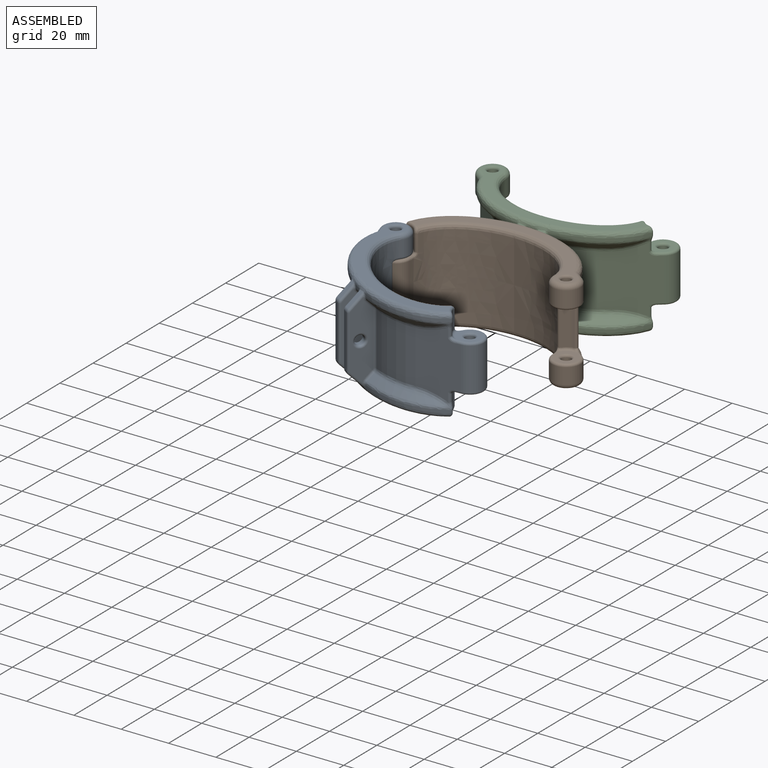
[diagram: assembled view]
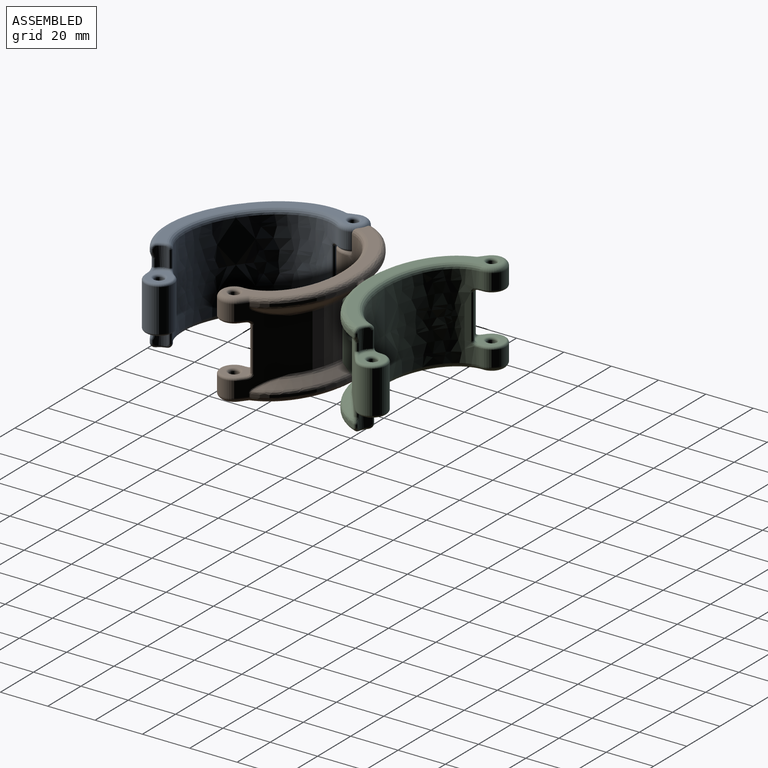
[diagram: assembled view, second angle]
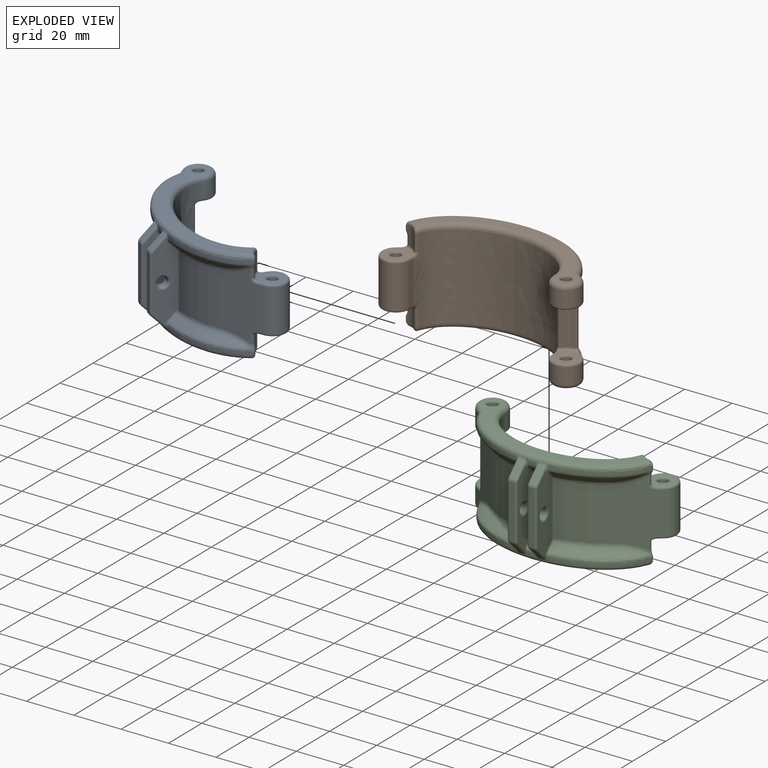
[diagram: exploded view]
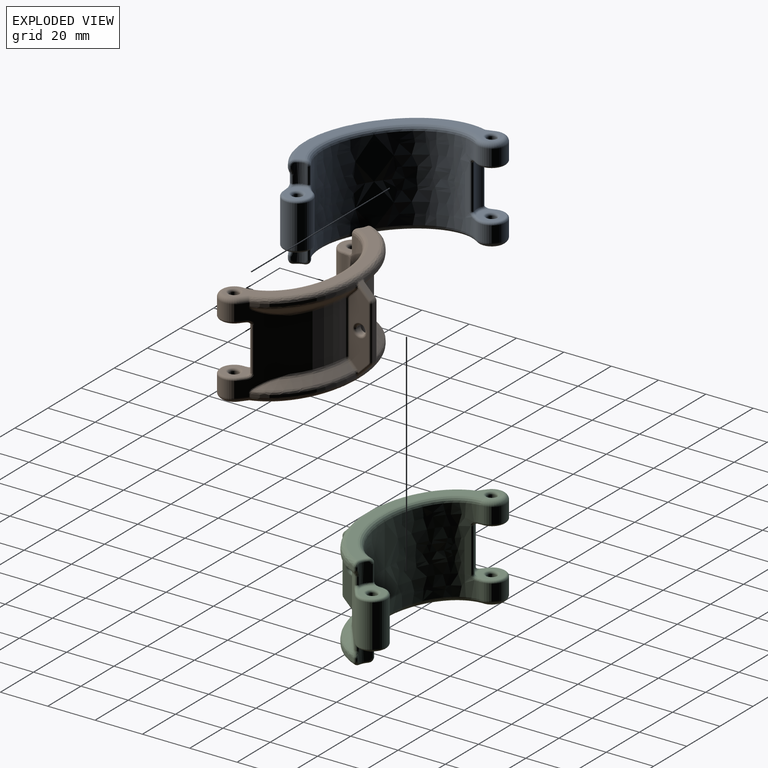
[diagram: exploded view, second angle]
ASSEMBLY  parts=3 mates=3
PART A: 245 faces, bbox 89x46.3x44.1 mm
  f0: bspline ~16.75x3.36mm, area 1.8mm2, adj f1,f4,f10,f193
  f1: bspline ~17.76x5.63mm, area 4.7mm2, adj f0,f2,f11,f196
  f2: bspline ~17.97x3.57mm, area 1.9mm2, adj f1,f3,f12,f197,f198
  f3: bspline ~17.97x3.02mm, area 2mm2, adj f2,f13,f35,f194
  f4: bspline ~16.54x11.17mm, area 13.1mm2, adj f0,f9,f14,f190
  f5: bspline ~16.75x3.36mm, area 1.8mm2, adj f6,f9,f15,f186
  f6: bspline ~17.76x5.63mm, area 4.7mm2, adj f5,f7,f16,f184
  f7: bspline ~17.97x3.57mm, area 1.9mm2, adj f6,f8,f17,f180,f183
  f8: bspline ~17.97x3.02mm, area 2mm2, adj f7,f18,f28,f182
  f9: bspline ~16.54x11.17mm, area 13.1mm2, adj f4,f5,f19,f188
  f10: bspline ~16.75x3.36mm, area 1.8mm2, adj f0,f11,f14,f229
  f11: bspline ~17.76x5.63mm, area 4.7mm2, adj f1,f10,f12,f231
  f12: bspline ~17.97x3.57mm, area 1.9mm2, adj f2,f11,f13,f233,f235
  f13: bspline ~17.97x3.02mm, area 2mm2, adj f3,f12,f54,f237
  f14: bspline ~16.54x11.17mm, area 13.1mm2, adj f4,f10,f19,f227
  f15: bspline ~16.75x3.36mm, area 1.8mm2, adj f5,f16,f19,f221
  f16: bspline ~17.76x5.63mm, area 4.7mm2, adj f6,f15,f17,f220
  f17: bspline ~17.97x3.57mm, area 1.9mm2, adj f7,f16,f18,f222,f224
  f18: bspline ~17.97x3.02mm, area 2mm2, adj f8,f17,f69,f225
  f19: bspline ~16.54x11.17mm, area 13.1mm2, adj f9,f14,f15,f223
  f20: bspline ~30x20mm, area 666.5mm2, adj f24,f38,f56,f58,f101,f109,f110
  f21: plane 36x14.3mm, normal (0.62,0.78,0), area 373.9mm2, adj f22,f55,f56,f60,f61,f62,f63,f70
  f22: cylinder r=6mm len=12mm, axis (0,0,-1), area 162.5mm2, adj f21,f24,f72,f105
  f23: cylinder r=2mm len=7.7mm, axis (0,0,-1), area 96.8mm2, adj f116,f132
  f24: bspline ~30x20mm, area 666.5mm2, adj f20,f22,f29,f71,f101,f107,f108
  f25: cylinder r=6mm len=18mm, axis (0,0,-1), area 436.6mm2, adj f27,f29,f38,f119,f124
  f26: cylinder r=2mm len=18mm, axis (0,0,-1), area 226.2mm2, adj f129,f130
  f27: plane 28.2x14.3mm, normal (-0.62,0.78,0), area 411.9mm2, adj f25,f36,f40,f41,f46,f48,f49,f82
  f28: bspline ~38x28mm, area 134mm2, adj f8,f45,f47,f69,f89,f158,f159,f160
  f29: bspline ~30x20mm, area 676.3mm2, adj f24,f25,f30,f38,f83,f123,f125
  f30: bspline ~32.44x18.72mm, area 113.2mm2, adj f29,f47,f71,f85
  f31: bspline ~33.52x17.8mm, area 31.7mm2, adj f32,f36,f40,f174
  f32: bspline ~37.41x27.41mm, area 109.6mm2, adj f31,f33,f40,f177
  f33: bspline ~38x28mm, area 57.2mm2, adj f32,f34,f41,f94,f178,f179
  f34: bspline ~38x28mm, area 44.1mm2, adj f33,f35,f96,f176
  f35: bspline ~38x28mm, area 134mm2, adj f3,f34,f37,f54,f97,f155,f156,f157
  f36: bspline ~32.97x17.22mm, area 224mm2, adj f27,f31,f46,f171
  f37: plane 74.69x30.03mm, normal (0,0,1), area 354mm2, adj f35,f39,f54,f58,f59,f60,f95,f131
  f38: bspline ~30x20mm, area 676.3mm2, adj f20,f25,f29,f39,f91,f117,f118
  f39: bspline ~32.44x18.72mm, area 113.2mm2, adj f37,f38,f58,f93
  f40: bspline ~11.65x9.66mm, area 21mm2, adj f27,f31,f32,f41
  f41: bspline ~2.67x2.48mm, area 1.8mm2, adj f27,f33,f40,f92
  f42: bspline ~33.52x17.8mm, area 31.7mm2, adj f43,f46,f48,f167
  f43: bspline ~37.41x27.41mm, area 109.6mm2, adj f42,f44,f48,f165
  f44: bspline ~38x28mm, area 57.2mm2, adj f43,f45,f49,f86,f161,f162
  f45: bspline ~38x28mm, area 44.1mm2, adj f28,f44,f88,f163
  f46: bspline ~32.97x17.22mm, area 224mm2, adj f27,f36,f42,f169
  f47: plane 74.67x30.03mm, normal (0,0,-1), area 354.4mm2, adj f28,f30,f69,f71,f72,f73,f87,f132
  f48: bspline ~11.65x9.66mm, area 21mm2, adj f27,f42,f43,f49
  f49: bspline ~2.67x2.48mm, area 1.8mm2, adj f27,f44,f48,f84
  f50: bspline ~33.52x17.8mm, area 31.7mm2, adj f51,f55,f61,f210
  f51: bspline ~37.41x27.41mm, area 109.6mm2, adj f50,f52,f61,f212
  f52: bspline ~38x28mm, area 57.4mm2, adj f51,f53,f62,f214,f216
  f53: bspline ~38x28mm, area 44.3mm2, adj f52,f54,f63,f218
  f54: bspline ~38x28mm, area 135.9mm2, adj f13,f35,f37,f53,f64,f144,f145,f146
  f55: bspline ~32.97x17.22mm, area 224mm2, adj f21,f50,f70,f208
  f56: cylinder r=6mm len=12mm, axis (0,0,-1), area 162.5mm2, adj f20,f21,f59,f111
  f57: cylinder r=2mm len=7.7mm, axis (0,0,-1), area 96.8mm2, adj f115,f131
  f58: bspline ~32.9x29.45mm, area 128.2mm2, adj f20,f37,f39,f59
  f59: torus R=4mm, axis (0,0,1), area 67mm2, adj f37,f56,f58,f60
  f60: cylinder r=2mm len=4.61mm, axis (-0.78,0.62,0), area 11.7mm2, adj f21,f37,f59,f64
  f61: bspline ~11.65x9.66mm, area 21mm2, adj f21,f50,f51,f62
  f62: bspline ~2.92x2.5mm, area 4.5mm2, adj f21,f52,f61,f63
  f63: cylinder r=2mm len=1.17mm, axis (0,0,1), area 1.3mm2, adj f21,f53,f62,f64
  f64: bspline ~2.17x2.06mm, area 1.4mm2, adj f54,f60,f63
  f65: bspline ~33.52x17.8mm, area 31.7mm2, adj f66,f70,f74,f202
  f66: bspline ~37.41x27.41mm, area 109.6mm2, adj f65,f67,f74,f201
  f67: bspline ~38x28mm, area 57.5mm2, adj f66,f68,f75,f203,f207
  f68: bspline ~38x28mm, area 44.3mm2, adj f67,f69,f76,f206
  f69: bspline ~38x28mm, area 135.9mm2, adj f18,f28,f47,f68,f77,f141,f142,f143
  f70: bspline ~32.97x17.22mm, area 224mm2, adj f21,f55,f65,f204
  f71: bspline ~32.9x29.45mm, area 128.2mm2, adj f24,f30,f47,f72
  f72: torus R=4mm, axis (0,0,-1), area 67mm2, adj f22,f47,f71,f73
  f73: cylinder r=2mm len=4.61mm, axis (-0.78,0.62,0), area 11.7mm2, adj f21,f47,f72,f77
  f74: bspline ~11.65x9.66mm, area 21mm2, adj f21,f65,f66,f75
  f75: bspline ~2.92x2.5mm, area 4.5mm2, adj f21,f67,f74,f76
  f76: cylinder r=2mm len=1.17mm, axis (0,0,-1), area 1.3mm2, adj f21,f68,f75,f77
  f77: bspline ~2.17x2.06mm, area 1.4mm2, adj f69,f73,f76
  f78: cylinder r=6.3mm len=8mm, axis (0,0,1), area 39.9mm2, adj f90,f91,f92,f93,f94,f95,f96,f97
  f79: plane 10.3x10.08mm, normal (0,0,1), area 53.1mm2, adj f117,f119,f120,f121,f130
  f80: plane 10.3x10.08mm, normal (0,0,-1), area 53.1mm2, adj f123,f124,f126,f127,f129
  f81: cylinder r=6.3mm len=8mm, axis (0,0,-1), area 39.9mm2, adj f82,f83,f84,f85,f86,f87,f88,f89
  f82: cylinder r=1mm len=3.1mm, axis (0,0,-1), area 7.2mm2, adj f27,f81,f84,f128
  f83: cylinder r=1mm len=7mm, axis (0,0,1), area 15.1mm2, adj f29,f81,f85,f125
  f84: bspline ~2.76x2.31mm, area 5.2mm2, adj f49,f81,f82,f86
  f85: bspline ~3.16x2.71mm, area 5.2mm2, adj f30,f81,f83,f87
  f86: bspline ~1.4x1.35mm, area 0.7mm2, adj f44,f81,f84,f88
  f87: torus R=7.3mm, axis (0,0,-1), area 5.8mm2, adj f47,f81,f85,f89
  f88: cylinder r=1mm len=1.35mm, axis (0,0,-1), area 2.2mm2, adj f45,f81,f86,f89
  f89: bspline ~2.52x2.23mm, area 4.5mm2, adj f28,f81,f87,f88
  f90: cylinder r=1mm len=3.1mm, axis (0,0,1), area 7.2mm2, adj f27,f78,f92,f122
  f91: cylinder r=1mm len=7mm, axis (0,0,-1), area 15.1mm2, adj f38,f78,f93,f118
  f92: bspline ~2.71x2.31mm, area 5.2mm2, adj f41,f78,f90,f94
  f93: bspline ~3.16x2.71mm, area 5.2mm2, adj f39,f78,f91,f95
  f94: bspline ~1.45x1.35mm, area 0.7mm2, adj f33,f78,f92,f96
  f95: torus R=7.3mm, axis (0,0,1), area 5.8mm2, adj f37,f78,f93,f97
  f96: cylinder r=1mm len=1.35mm, axis (0,0,1), area 2.2mm2, adj f34,f78,f94,f97
  f97: bspline ~2.52x2.23mm, area 4.5mm2, adj f35,f78,f95,f96
  f98: cylinder r=6.3mm len=18.6mm, axis (0,0,1), area 88.5mm2, adj f101,f102,f106,f112
  f99: plane 14.3x14.08mm, normal (0,0,1), area 53.1mm2, adj f103,f105,f106,f107,f116
  f100: plane 10.3x10.08mm, normal (0,0,-1), area 53.1mm2, adj f109,f111,f112,f113,f115
  f101: cylinder r=1mm len=18.6mm, axis (0,0,1), area 40.2mm2, adj f20,f24,f98,f108,f110
  f102: cylinder r=1mm len=18.6mm, axis (0,0,1), area 43.3mm2, adj f21,f98,f104,f114
  f103: cylinder r=1mm len=2mm, axis (0.78,-0.62,0), area 2.8mm2, adj f21,f99,f104,f105
  f104: bspline ~3.45x3.11mm, area 6.7mm2, adj f21,f102,f103,f106
  f105: torus R=5mm, axis (0,0,1), area 35.8mm2, adj f22,f99,f103,f107
  f106: torus R=5.3mm, axis (0,0,1), area 20.6mm2, adj f98,f99,f104,f108
  f107: bspline ~10.23x1.14mm, area 2.3mm2, adj f24,f99,f105,f108
  f108: bspline ~3.44x2.18mm, area 5.6mm2, adj f24,f101,f106,f107
  f109: bspline ~10.23x1.14mm, area 2.3mm2, adj f20,f100,f110,f111
  f110: bspline ~3.62x2.38mm, area 5.6mm2, adj f20,f101,f109,f112
  f111: torus R=5mm, axis (0,0,1), area 35.8mm2, adj f56,f100,f109,f113
  f112: torus R=5.3mm, axis (0,0,1), area 10.9mm2, adj f98,f100,f110,f114
  f113: cylinder r=1mm len=2mm, axis (-0.78,0.62,0), area 2.8mm2, adj f21,f100,f111,f114
  f114: bspline ~4.05x3.51mm, area 6.7mm2, adj f21,f102,f112,f113
  f115: torus R=3mm, axis (0,0,1), area 23.3mm2, adj f57,f100
  f116: torus R=3mm, axis (0,0,1), area 23.3mm2, adj f23,f99
  f117: bspline ~10.23x1.14mm, area 2.3mm2, adj f38,f79,f118,f119
  f118: bspline ~3.62x2.38mm, area 5.6mm2, adj f38,f91,f117,f120
  f119: torus R=5mm, axis (0,0,1), area 35.8mm2, adj f25,f79,f117,f121
  f120: torus R=5.3mm, axis (0,0,1), area 10.9mm2, adj f78,f79,f118,f122
  f121: cylinder r=1mm len=2mm, axis (0.78,0.62,0), area 2.8mm2, adj f27,f79,f119,f122
  f122: bspline ~4.05x3.51mm, area 6.7mm2, adj f27,f90,f120,f121
  f123: bspline ~10.23x1.14mm, area 2.3mm2, adj f29,f80,f124,f125
  f124: torus R=5mm, axis (0,0,-1), area 35.8mm2, adj f25,f80,f123,f126
  f125: bspline ~3.44x2.18mm, area 5.6mm2, adj f29,f83,f123,f127
  f126: cylinder r=1mm len=2mm, axis (-0.78,-0.62,0), area 2.8mm2, adj f27,f80,f124,f128
  f127: torus R=5.3mm, axis (0,0,-1), area 10.9mm2, adj f80,f81,f125,f128
  f128: bspline ~3.45x3.11mm, area 6.7mm2, adj f27,f82,f126,f127
  f129: torus R=3mm, axis (0,0,-1), area 23.3mm2, adj f26,f80
  f130: torus R=3mm, axis (0,0,1), area 23.3mm2, adj f26,f79
  f131: torus R=3mm, axis (0,0,1), area 23.3mm2, adj f37,f57
  f132: torus R=3mm, axis (0,0,-1), area 23.3mm2, adj f23,f47
  f133: plane 31.58x8.01mm, normal (-1,0,0), area 189.7mm2, adj f220,f221,f222,f223,f227,f228,f229,f230
  f134: plane 32.3x8.53mm, normal (1,0,0), area 205.8mm2, adj f201,f202,f203,f204,f208,f209,f210,f211
  f135: cylinder r=2mm len=4mm, axis (-1,0,0), area 25.1mm2, adj f239,f240
  f136: cylinder r=2mm len=2mm, axis (-1,0,0), area 3.1mm2, adj f137,f140,f215,f234
  f137: plane 22.34x2mm, normal (0,1,0), area 44.7mm2, adj f136,f138,f213,f232
  f138: cylinder r=2mm len=2mm, axis (-1,0,0), area 3.1mm2, adj f137,f139,f211,f230
  f139: plane 5.47x5.47mm, normal (0,0.71,-0.71), area 15.2mm2, adj f138,f209,f228,f241
  f140: plane 5.47x5.47mm, normal (0,0.71,0.71), area 15.2mm2, adj f136,f217,f236,f242
  f141: plane 0.43x0.05mm, normal (1,0,0), area 0mm2, adj f47,f69,f143
  f142: plane 0.05x0mm, normal (-1,0,0), area 0mm2, adj f47,f69,f143
  f143: plane 4x0.05mm, normal (0,0.71,-0.71), area 0.1mm2, adj f47,f69,f141,f142
  f144: plane 0.44x0.06mm, normal (1,0,0), area 0mm2, adj f37,f54,f146
  f145: plane 0.05x0mm, normal (-1,0,0), area 0mm2, adj f37,f54,f146
  f146: plane 4x0.05mm, normal (0,0.71,0.71), area 0.1mm2, adj f37,f54,f144,f145
  f147: plane 31.58x8.01mm, normal (1,0,0), area 189.7mm2, adj f180,f184,f185,f186,f187,f188,f189,f190
  f148: plane 32.3x8.53mm, normal (-1,0,0), area 205.8mm2, adj f161,f165,f166,f167,f168,f169,f170,f171
  f149: cylinder r=2mm len=4mm, axis (1,0,0), area 25.1mm2, adj f199,f200
  f150: cylinder r=2mm len=2mm, axis (1,0,0), area 3.1mm2, adj f151,f154,f168,f187
  f151: plane 22.34x2mm, normal (0,1,0), area 44.7mm2, adj f150,f152,f170,f189
  f152: cylinder r=2mm len=2mm, axis (1,0,0), area 3.1mm2, adj f151,f153,f172,f192
  f153: plane 5.47x5.47mm, normal (0,0.71,0.71), area 15.2mm2, adj f152,f175,f195,f243
  f154: plane 5.47x5.47mm, normal (0,0.71,-0.71), area 15.2mm2, adj f150,f166,f185,f244
  f155: plane 0.05x0mm, normal (1,0,0), area 0mm2, adj f35,f37,f157
  f156: plane 0.43x0.05mm, normal (-1,0,0), area 0mm2, adj f35,f37,f157
  f157: plane 4x0.05mm, normal (0,0.71,0.71), area 0.1mm2, adj f35,f37,f155,f156
  f158: plane 0.44x0.06mm, normal (-1,0,0), area 0mm2, adj f28,f47,f160
  f159: plane 0.05x0mm, normal (1,0,0), area 0mm2, adj f28,f47,f160
  f160: plane 4x0.05mm, normal (0,0.71,-0.71), area 0.1mm2, adj f28,f47,f158,f159
  f161: bspline ~2.1x1.72mm, area 1.9mm2, adj f44,f148,f162,f165
  f162: bspline ~1.06x0.98mm, area 0.6mm2, adj f44,f161,f163,f166
  f163: bspline ~1.7x1.24mm, area 1.2mm2, adj f45,f162,f164,f166
  f164: bspline ~1.52x1.07mm, area 0.8mm2, adj f28,f163,f166,f244
  f165: bspline ~4.55x4.52mm, area 5.9mm2, adj f43,f148,f161,f167
  f166: cylinder r=1mm len=6.18mm, axis (0,0.71,0.71), area 11.1mm2, adj f148,f154,f162,f163,f164,f168
  f167: bspline ~1.77x1.3mm, area 1.8mm2, adj f42,f148,f165,f169
  f168: torus R=1mm, axis (-1,0,0), area 2mm2, adj f148,f150,f166,f170
  f169: cylinder r=1mm len=11.17mm, axis (0,0,-1), area 15.9mm2, adj f46,f148,f167,f171
  f170: cylinder r=1mm len=22.34mm, axis (0,0,1), area 35.1mm2, adj f148,f151,f168,f172
  f171: cylinder r=1mm len=11.17mm, axis (0,0,1), area 15.9mm2, adj f36,f148,f169,f174
  f172: torus R=1mm, axis (-1,0,0), area 2mm2, adj f148,f152,f170,f175
  f173: bspline ~1.52x1.07mm, area 0.8mm2, adj f35,f175,f176,f243
  f174: bspline ~1.6x1.34mm, area 1.8mm2, adj f31,f148,f171,f177
  f175: cylinder r=1mm len=6.18mm, axis (0,-0.71,0.71), area 11.1mm2, adj f148,f153,f172,f173,f176,f178
  f176: bspline ~1.77x1.26mm, area 1.2mm2, adj f34,f173,f175,f178
  f177: bspline ~4.55x4.52mm, area 5.9mm2, adj f32,f148,f174,f179
  f178: bspline ~0.99x0.92mm, area 0.6mm2, adj f33,f175,f176,f179
  f179: bspline ~1.92x1.69mm, area 1.9mm2, adj f33,f148,f177,f178
  f180: bspline ~1.79x1.59mm, area 1.6mm2, adj f7,f147,f183,f184
  f181: bspline ~1.32x1.02mm, area 0.7mm2, adj f28,f182,f185,f244
  f182: bspline ~1.88x1.51mm, area 1.3mm2, adj f8,f181,f183,f185
  f183: bspline ~1.35x1.13mm, area 0.9mm2, adj f7,f180,f182,f185
  f184: bspline ~4.54x4.54mm, area 6.3mm2, adj f6,f147,f180,f186
  f185: cylinder r=1mm len=5.98mm, axis (0,-0.71,-0.71), area 10.4mm2, adj f147,f154,f181,f182,f183,f187
  f186: bspline ~2x1.55mm, area 2.1mm2, adj f5,f147,f184,f188
  f187: torus R=1mm, axis (-1,0,0), area 2mm2, adj f147,f150,f185,f189
  f188: cylinder r=1mm len=11.17mm, axis (0,0,-1), area 17.8mm2, adj f9,f147,f186,f190
  f189: cylinder r=1mm len=22.34mm, axis (0,0,-1), area 35.1mm2, adj f147,f151,f187,f192
  f190: cylinder r=1mm len=11.17mm, axis (0,0,1), area 17.8mm2, adj f4,f147,f188,f193
  f191: bspline ~1.32x1.02mm, area 0.7mm2, adj f35,f194,f195,f243
  f192: torus R=1mm, axis (-1,0,0), area 2mm2, adj f147,f152,f189,f195
  f193: bspline ~2x1.55mm, area 2.1mm2, adj f0,f147,f190,f196
  f194: bspline ~1.88x1.51mm, area 1.3mm2, adj f3,f191,f195,f197
  f195: cylinder r=1mm len=5.98mm, axis (0,0.71,-0.71), area 10.4mm2, adj f147,f153,f191,f192,f194,f197
  f196: bspline ~4.54x4.54mm, area 6.3mm2, adj f1,f147,f193,f198
  f197: bspline ~1.18x1.13mm, area 0.9mm2, adj f2,f194,f195,f198
  f198: bspline ~1.93x1.8mm, area 1.6mm2, adj f2,f147,f196,f197
  f199: torus R=3mm, axis (-1,0,0), area 23.3mm2, adj f147,f149
  f200: torus R=3mm, axis (-1,0,0), area 23.3mm2, adj f148,f149
  f201: bspline ~4.55x4.52mm, area 5.9mm2, adj f66,f134,f202,f203
  f202: bspline ~1.6x1.34mm, area 1.8mm2, adj f65,f134,f201,f204
  f203: bspline ~1.92x1.69mm, area 1.9mm2, adj f67,f134,f201,f207
  f204: cylinder r=1mm len=11.17mm, axis (0,0,-1), area 15.9mm2, adj f70,f134,f202,f208
  f205: bspline ~1.52x1.07mm, area 0.8mm2, adj f69,f206,f209,f241
  f206: bspline ~1.77x1.26mm, area 1.2mm2, adj f68,f205,f207,f209
  f207: bspline ~0.99x0.92mm, area 0.6mm2, adj f67,f203,f206,f209
  f208: cylinder r=1mm len=11.17mm, axis (0,0,1), area 15.9mm2, adj f55,f134,f204,f210
  f209: cylinder r=1mm len=6.18mm, axis (0,-0.71,-0.71), area 11.1mm2, adj f134,f139,f205,f206,f207,f211
  f210: bspline ~1.77x1.3mm, area 1.8mm2, adj f50,f134,f208,f212
  f211: torus R=1mm, axis (1,0,0), area 2mm2, adj f134,f138,f209,f213
  f212: bspline ~4.55x4.52mm, area 5.9mm2, adj f51,f134,f210,f214
  f213: cylinder r=1mm len=22.34mm, axis (0,0,-1), area 35.1mm2, adj f134,f137,f211,f215
  f214: bspline ~2.1x1.72mm, area 1.9mm2, adj f52,f134,f212,f216
  f215: torus R=1mm, axis (1,0,0), area 2mm2, adj f134,f136,f213,f217
  f216: bspline ~1.06x0.98mm, area 0.6mm2, adj f52,f214,f217,f218
  f217: cylinder r=1mm len=6.18mm, axis (0,0.71,-0.71), area 11.1mm2, adj f134,f140,f215,f216,f218,f219
  f218: bspline ~1.7x1.24mm, area 1.2mm2, adj f53,f216,f217,f219
  f219: bspline ~1.52x1.07mm, area 0.8mm2, adj f54,f217,f218,f242
  f220: bspline ~4.54x4.54mm, area 6.3mm2, adj f16,f133,f221,f222
  f221: bspline ~2x1.55mm, area 2.1mm2, adj f15,f133,f220,f223
  f222: bspline ~1.93x1.8mm, area 1.6mm2, adj f17,f133,f220,f224
  f223: cylinder r=1mm len=11.17mm, axis (0,0,-1), area 17.8mm2, adj f19,f133,f221,f227
  f224: bspline ~1.18x1.13mm, area 0.9mm2, adj f17,f222,f225,f228
  f225: bspline ~1.88x1.51mm, area 1.3mm2, adj f18,f224,f226,f228
  f226: bspline ~1.32x1.02mm, area 0.7mm2, adj f69,f225,f228,f241
  f227: cylinder r=1mm len=11.17mm, axis (0,0,1), area 17.8mm2, adj f14,f133,f223,f229
  f228: cylinder r=1mm len=5.98mm, axis (0,0.71,0.71), area 10.4mm2, adj f133,f139,f224,f225,f226,f230
  f229: bspline ~2x1.55mm, area 2.1mm2, adj f10,f133,f227,f231
  f230: torus R=1mm, axis (1,0,0), area 2mm2, adj f133,f138,f228,f232
  f231: bspline ~4.54x4.54mm, area 6.3mm2, adj f11,f133,f229,f233
  f232: cylinder r=1mm len=22.34mm, axis (0,0,1), area 35.1mm2, adj f133,f137,f230,f234
  f233: bspline ~1.79x1.59mm, area 1.6mm2, adj f12,f133,f231,f235
  f234: torus R=1mm, axis (1,0,0), area 2mm2, adj f133,f136,f232,f236
  f235: bspline ~1.35x1.13mm, area 0.9mm2, adj f12,f233,f236,f237
  f236: cylinder r=1mm len=5.98mm, axis (0,-0.71,0.71), area 10.4mm2, adj f133,f140,f234,f235,f237,f238
  f237: bspline ~1.88x1.51mm, area 1.3mm2, adj f13,f235,f236,f238
  f238: bspline ~1.32x1.02mm, area 0.7mm2, adj f54,f236,f237,f242
  f239: torus R=3mm, axis (1,0,0), area 23.3mm2, adj f133,f135
  f240: torus R=3mm, axis (1,0,0), area 23.3mm2, adj f134,f135
  f241: bspline ~5.3x0.89mm, area 1.1mm2, adj f69,f139,f205,f226
  f242: bspline ~3.77x0.79mm, area 1.1mm2, adj f54,f140,f219,f238
  f243: bspline ~5.3x0.89mm, area 1.1mm2, adj f35,f153,f173,f191
  f244: bspline ~3.77x0.79mm, area 1.1mm2, adj f28,f154,f164,f181
PART B: 171 faces, bbox 89x46.3x44.1 mm
  f0: bspline ~40.08x28mm, area 135.9mm2, adj f10,f13,f30,f74,f110,f116
  f1: bspline ~33.52x17.8mm, area 41.3mm2, adj f2,f6,f27,f119
  f2: bspline ~37.41x27.41mm, area 136mm2, adj f1,f3,f28,f123
  f3: bspline ~38x28mm, area 64.4mm2, adj f2,f4,f29,f80,f127,f131
  f4: bspline ~38x28mm, area 49.2mm2, adj f3,f5,f82,f134
  f5: bspline ~40.08x28mm, area 135.9mm2, adj f4,f12,f24,f83,f137,f138
  f6: bspline ~32.97x17.22mm, area 270.2mm2, adj f1,f11,f21,f113
  f7: bspline ~33.52x17.8mm, area 41.3mm2, adj f8,f11,f31,f101
  f8: bspline ~37.41x27.41mm, area 136mm2, adj f7,f9,f32,f102
  f9: bspline ~38x28mm, area 64.4mm2, adj f8,f10,f33,f71,f109,f114
  f10: bspline ~38x28mm, area 49.2mm2, adj f0,f9,f73,f115
  f11: bspline ~32.97x17.22mm, area 270.2mm2, adj f6,f7,f21,f108
  f12: bspline ~40.08x28mm, area 138.4mm2, adj f5,f24,f37,f48,f133,f136
  f13: bspline ~40.08x28mm, area 138.4mm2, adj f0,f30,f52,f61,f103,f104
  f14: bspline ~30x20mm, area 666.5mm2, adj f18,f25,f39,f41,f87,f147,f148
  f15: plane 36.39x14.69mm, normal (0.62,0.78,0), area 387.5mm2, adj f16,f38,f39,f43,f44,f45,f46,f47
  f16: cylinder r=6mm len=12mm, axis (0,0,-1), area 162.5mm2, adj f15,f18,f55,f143
  f17: cylinder r=2mm len=7.7mm, axis (0,0,-1), area 96.8mm2, adj f154,f170
  f18: bspline ~30x20mm, area 666.5mm2, adj f14,f16,f22,f54,f87,f145,f146
  f19: cylinder r=6mm len=18mm, axis (0,0,-1), area 436.6mm2, adj f21,f22,f25,f157,f162
  f20: cylinder r=2mm len=18mm, axis (0,0,-1), area 226.2mm2, adj f167,f168
  f21: plane 29.64x14.69mm, normal (-0.62,0.78,0), area 422.3mm2, adj f6,f11,f19,f27,f28,f31,f32,f66
  f22: bspline ~30x20mm, area 676.3mm2, adj f18,f19,f23,f25,f68,f161,f163
  f23: bspline ~32.44x18.72mm, area 113.2mm2, adj f22,f30,f54,f70
  f24: plane 74.69x30.03mm, normal (0,0,1), area 353.8mm2, adj f5,f12,f26,f41,f42,f43,f81,f169
  f25: bspline ~30x20mm, area 676.3mm2, adj f14,f19,f22,f26,f77,f155,f156
  f26: bspline ~32.44x18.72mm, area 113.2mm2, adj f24,f25,f41,f79
  f27: bspline ~3.32x2.55mm, area 1.1mm2, adj f1,f21,f28
  f28: bspline ~12.47x10.08mm, area 7.8mm2, adj f2,f21,f27,f29,f76
  f29: bspline ~1.43x1.39mm, area 0.6mm2, adj f3,f28,f78
  f30: plane 74.67x30.03mm, normal (0,0,-1), area 352.4mm2, adj f0,f13,f23,f54,f55,f56,f72,f170
  f31: bspline ~3.39x2.6mm, area 1.1mm2, adj f7,f21,f32
  f32: bspline ~12.47x10.08mm, area 7.8mm2, adj f8,f21,f31,f33,f67
  f33: bspline ~1.43x1.39mm, area 0.6mm2, adj f9,f32,f69
  f34: bspline ~33.52x17.8mm, area 41.3mm2, adj f35,f38,f44,f112
  f35: bspline ~37.41x27.41mm, area 136mm2, adj f34,f36,f45,f118
  f36: bspline ~38x28mm, area 64.3mm2, adj f35,f37,f46,f122,f126
  f37: bspline ~38x28mm, area 49.7mm2, adj f12,f36,f47,f130
  f38: bspline ~32.97x17.22mm, area 270.2mm2, adj f15,f34,f53,f107
  f39: cylinder r=6mm len=12mm, axis (0,0,-1), area 162.5mm2, adj f14,f15,f42,f149
  f40: cylinder r=2mm len=7.7mm, axis (0,0,-1), area 96.8mm2, adj f153,f169
  f41: bspline ~32.9x29.45mm, area 128.2mm2, adj f14,f24,f26,f42
  f42: torus R=4mm, axis (0,0,1), area 67mm2, adj f24,f39,f41,f43
  f43: cylinder r=2mm len=4.61mm, axis (-0.78,0.62,0), area 12.1mm2, adj f15,f24,f42,f48
  f44: bspline ~3.39x2.6mm, area 1.1mm2, adj f15,f34,f45
  f45: bspline ~12.47x10.08mm, area 7.9mm2, adj f15,f35,f44,f46
  f46: bspline ~2.27x1.64mm, area 1.8mm2, adj f15,f36,f45,f47
  f47: cylinder r=1mm len=1.17mm, axis (0,0,1), area 0.7mm2, adj f15,f37,f46,f48
  f48: bspline ~2.03x1.94mm, area 0.7mm2, adj f12,f43,f47
  f49: bspline ~33.52x17.8mm, area 41.3mm2, adj f50,f53,f57,f98
  f50: bspline ~37.41x27.41mm, area 136mm2, adj f49,f51,f58,f97
  f51: bspline ~38x28mm, area 64.7mm2, adj f50,f52,f59,f99,f106
  f52: bspline ~38x28mm, area 49.7mm2, adj f13,f51,f60,f105
  f53: bspline ~32.97x17.22mm, area 270.2mm2, adj f15,f38,f49,f100
  f54: bspline ~32.9x29.45mm, area 128.2mm2, adj f18,f23,f30,f55
  f55: torus R=4mm, axis (0,0,-1), area 67mm2, adj f16,f30,f54,f56
  f56: cylinder r=2mm len=4.61mm, axis (-0.78,0.62,0), area 12.1mm2, adj f15,f30,f55,f61
  f57: bspline ~3.32x2.55mm, area 1.1mm2, adj f15,f49,f58
  f58: bspline ~12.47x10.08mm, area 7.9mm2, adj f15,f50,f57,f59
  f59: bspline ~2.27x1.64mm, area 1.8mm2, adj f15,f51,f58,f60
  f60: cylinder r=1mm len=1.17mm, axis (0,0,-1), area 0.7mm2, adj f15,f52,f59,f61
  f61: bspline ~2x1.94mm, area 0.7mm2, adj f13,f56,f60
  f62: cylinder r=6.3mm len=8mm, axis (0,0,1), area 39.7mm2, adj f75,f76,f77,f78,f79,f80,f81,f82
  f63: plane 10.3x10.08mm, normal (0,0,1), area 53.1mm2, adj f155,f157,f158,f159,f168
  f64: plane 10.3x10.08mm, normal (0,0,-1), area 53.1mm2, adj f161,f162,f164,f165,f167
  f65: cylinder r=6.3mm len=8mm, axis (0,0,-1), area 39.7mm2, adj f66,f67,f68,f69,f70,f71,f72,f73
  f66: cylinder r=1mm len=3.63mm, axis (0,0,-1), area 8.4mm2, adj f21,f65,f67,f166
  f67: bspline ~2.44x1.81mm, area 0.6mm2, adj f32,f65,f66,f69
  f68: cylinder r=1mm len=7mm, axis (0,0,1), area 15.1mm2, adj f22,f65,f70,f163
  f69: bspline ~2.19x1.99mm, area 2.7mm2, adj f33,f65,f67,f71
  f70: bspline ~3.16x2.71mm, area 5.2mm2, adj f23,f65,f68,f72
  f71: bspline ~1.68x1.52mm, area 1.4mm2, adj f9,f65,f69,f73
  f72: torus R=7.3mm, axis (0,0,-1), area 5.8mm2, adj f30,f65,f70,f74
  f73: cylinder r=1mm len=1.35mm, axis (0,0,-1), area 2.2mm2, adj f10,f65,f71,f74
  f74: bspline ~2.52x2.23mm, area 4.5mm2, adj f0,f65,f72,f73
  f75: cylinder r=1mm len=3.63mm, axis (0,0,1), area 8.4mm2, adj f21,f62,f76,f160
  f76: bspline ~2.44x1.81mm, area 0.6mm2, adj f28,f62,f75,f78
  f77: cylinder r=1mm len=7mm, axis (0,0,-1), area 15.1mm2, adj f25,f62,f79,f156
  f78: bspline ~2.26x1.9mm, area 2.7mm2, adj f29,f62,f76,f80
  f79: bspline ~3.16x2.71mm, area 5.2mm2, adj f26,f62,f77,f81
  f80: bspline ~1.5x1.36mm, area 1.4mm2, adj f3,f62,f78,f82
  f81: torus R=7.3mm, axis (0,0,1), area 5.8mm2, adj f24,f62,f79,f83
  f82: cylinder r=1mm len=1.35mm, axis (0,0,1), area 2.2mm2, adj f4,f62,f80,f83
  f83: bspline ~2.52x2.23mm, area 4.5mm2, adj f5,f62,f81,f82
  f84: cylinder r=6.3mm len=18.6mm, axis (0,0,1), area 88.5mm2, adj f87,f88,f144,f150
  f85: plane 14.3x14.08mm, normal (0,0,1), area 53.1mm2, adj f141,f143,f144,f145,f154
  f86: plane 10.3x10.08mm, normal (0,0,-1), area 53.1mm2, adj f147,f149,f150,f151,f153
  f87: cylinder r=1mm len=18.6mm, axis (0,0,1), area 40.2mm2, adj f14,f18,f84,f146,f148
  f88: cylinder r=1mm len=18.6mm, axis (0,0,1), area 43.3mm2, adj f15,f84,f142,f152
  f89: plane 5.17x5.17mm, normal (0,0.71,0.71), area 14.6mm2, adj f93,f129,f135,f136,f138
  f90: plane 5.17x5.17mm, normal (0,0.71,-0.71), area 14.6mm2, adj f91,f103,f110,f111,f120
  f91: cylinder r=2mm len=2mm, axis (1,0,0), area 3.1mm2, adj f90,f92,f117,f124
  f92: plane 22.34x2mm, normal (0,1,0), area 44.7mm2, adj f91,f93,f121,f128
  f93: cylinder r=2mm len=2mm, axis (1,0,0), area 3.1mm2, adj f89,f92,f125,f132
  f94: cylinder r=2mm len=4mm, axis (1,0,0), area 25.1mm2, adj f139,f140
  f95: plane 31.68x8.09mm, normal (-1,0,0), area 192.1mm2, adj f101,f102,f108,f109,f113,f119,f120,f123
  f96: plane 31.68x8.09mm, normal (1,0,0), area 192.1mm2, adj f97,f98,f99,f100,f107,f111,f112,f117
  f97: bspline ~4.53x4.53mm, area 6.1mm2, adj f50,f96,f98,f99
  f98: bspline ~1.87x1.41mm, area 1.9mm2, adj f49,f96,f97,f100
  f99: bspline ~2x1.81mm, area 1.6mm2, adj f51,f96,f97,f106
  f100: cylinder r=1mm len=11.17mm, axis (0,0,-1), area 16.9mm2, adj f53,f96,f98,f107
  f101: bspline ~1.87x1.41mm, area 1.9mm2, adj f7,f95,f102,f108
  f102: bspline ~4.53x4.53mm, area 6.1mm2, adj f8,f95,f101,f109
  f103: bspline ~6.02x0.59mm, area 0.6mm2, adj f13,f90,f104,f110
  f104: bspline ~1.42x0.93mm, area 0.6mm2, adj f13,f103,f105,f111
  f105: bspline ~1.85x1.45mm, area 1.2mm2, adj f52,f104,f106,f111
  f106: bspline ~1.31x1.05mm, area 0.9mm2, adj f51,f99,f105,f111
  f107: cylinder r=1mm len=11.17mm, axis (0,0,1), area 16.9mm2, adj f38,f96,f100,f112
  f108: cylinder r=1mm len=11.17mm, axis (0,0,-1), area 16.9mm2, adj f11,f95,f101,f113
  f109: bspline ~1.93x1.79mm, area 1.6mm2, adj f9,f95,f102,f114
  f110: bspline ~3.02x0.59mm, area 0.6mm2, adj f0,f90,f103,f116
  f111: cylinder r=1mm len=5.87mm, axis (0,0.71,0.71), area 10.4mm2, adj f90,f96,f104,f105,f106,f117
  f112: bspline ~1.87x1.41mm, area 1.9mm2, adj f34,f96,f107,f118
  f113: cylinder r=1mm len=11.17mm, axis (0,0,1), area 16.9mm2, adj f6,f95,f108,f119
  f114: bspline ~1.13x1.05mm, area 0.9mm2, adj f9,f109,f115,f120
  f115: bspline ~1.85x1.45mm, area 1.2mm2, adj f10,f114,f116,f120
  f116: bspline ~1.42x0.94mm, area 0.6mm2, adj f0,f110,f115,f120
  f117: torus R=1mm, axis (1,0,0), area 2mm2, adj f91,f96,f111,f121
  f118: bspline ~4.53x4.53mm, area 6.1mm2, adj f35,f96,f112,f122
  f119: bspline ~1.87x1.41mm, area 1.9mm2, adj f1,f95,f113,f123
  f120: cylinder r=1mm len=5.87mm, axis (0,-0.71,-0.71), area 10.4mm2, adj f90,f95,f114,f115,f116,f124
  f121: cylinder r=1mm len=22.34mm, axis (0,0,1), area 35.1mm2, adj f92,f96,f117,f125
  f122: bspline ~1.93x1.79mm, area 1.6mm2, adj f36,f96,f118,f126
  f123: bspline ~4.53x4.53mm, area 6.1mm2, adj f2,f95,f119,f127
  f124: torus R=1mm, axis (1,0,0), area 2mm2, adj f91,f95,f120,f128
  f125: torus R=1mm, axis (1,0,0), area 2mm2, adj f93,f96,f121,f129
  f126: bspline ~1.13x1.05mm, area 0.9mm2, adj f36,f122,f129,f130
  f127: bspline ~2x1.81mm, area 1.6mm2, adj f3,f95,f123,f131
  f128: cylinder r=1mm len=22.34mm, axis (0,0,-1), area 35.1mm2, adj f92,f95,f124,f132
  f129: cylinder r=1mm len=5.87mm, axis (0,-0.71,0.71), area 10.4mm2, adj f89,f96,f125,f126,f130,f133
  f130: bspline ~1.85x1.45mm, area 1.2mm2, adj f37,f126,f129,f133
  f131: bspline ~1.31x1.05mm, area 0.9mm2, adj f3,f127,f134,f135
  f132: torus R=1mm, axis (1,0,0), area 2mm2, adj f93,f95,f128,f135
  f133: bspline ~1.42x0.94mm, area 0.6mm2, adj f12,f129,f130,f136
  f134: bspline ~1.85x1.45mm, area 1.2mm2, adj f4,f131,f135,f137
  f135: cylinder r=1mm len=5.87mm, axis (0,0.71,-0.71), area 10.4mm2, adj f89,f95,f131,f132,f134,f137
  f136: bspline ~6.02x0.59mm, area 0.6mm2, adj f12,f89,f133,f138
  f137: bspline ~1.42x0.93mm, area 0.6mm2, adj f5,f134,f135,f138
  f138: bspline ~6.02x0.59mm, area 0.6mm2, adj f5,f89,f136,f137
  f139: torus R=3mm, axis (1,0,0), area 23.3mm2, adj f94,f96
  f140: torus R=3mm, axis (1,0,0), area 23.3mm2, adj f94,f95
  f141: cylinder r=1mm len=2mm, axis (0.78,-0.62,0), area 2.8mm2, adj f15,f85,f142,f143
  f142: bspline ~3.45x3.11mm, area 6.7mm2, adj f15,f88,f141,f144
  f143: torus R=5mm, axis (0,0,1), area 35.8mm2, adj f16,f85,f141,f145
  f144: torus R=5.3mm, axis (0,0,1), area 20.6mm2, adj f84,f85,f142,f146
  f145: bspline ~10.23x1.14mm, area 2.3mm2, adj f18,f85,f143,f146
  f146: bspline ~3.44x2.18mm, area 5.6mm2, adj f18,f87,f144,f145
  f147: bspline ~10.23x1.14mm, area 2.3mm2, adj f14,f86,f148,f149
  f148: bspline ~3.62x2.38mm, area 5.6mm2, adj f14,f87,f147,f150
  f149: torus R=5mm, axis (0,0,1), area 35.8mm2, adj f39,f86,f147,f151
  f150: torus R=5.3mm, axis (0,0,1), area 10.9mm2, adj f84,f86,f148,f152
  f151: cylinder r=1mm len=2mm, axis (-0.78,0.62,0), area 2.8mm2, adj f15,f86,f149,f152
  f152: bspline ~4.05x3.51mm, area 6.7mm2, adj f15,f88,f150,f151
  f153: torus R=3mm, axis (0,0,1), area 23.3mm2, adj f40,f86
  f154: torus R=3mm, axis (0,0,1), area 23.3mm2, adj f17,f85
  f155: bspline ~10.23x1.14mm, area 2.3mm2, adj f25,f63,f156,f157
  f156: bspline ~3.62x2.38mm, area 5.6mm2, adj f25,f77,f155,f158
  f157: torus R=5mm, axis (0,0,1), area 35.8mm2, adj f19,f63,f155,f159
  f158: torus R=5.3mm, axis (0,0,1), area 10.9mm2, adj f62,f63,f156,f160
  f159: cylinder r=1mm len=2mm, axis (0.78,0.62,0), area 2.8mm2, adj f21,f63,f157,f160
  f160: bspline ~4.05x3.51mm, area 6.7mm2, adj f21,f75,f158,f159
  f161: bspline ~10.23x1.14mm, area 2.3mm2, adj f22,f64,f162,f163
  f162: torus R=5mm, axis (0,0,-1), area 35.8mm2, adj f19,f64,f161,f164
  f163: bspline ~3.44x2.18mm, area 5.6mm2, adj f22,f68,f161,f165
  f164: cylinder r=1mm len=2mm, axis (-0.78,-0.62,0), area 2.8mm2, adj f21,f64,f162,f166
  f165: torus R=5.3mm, axis (0,0,-1), area 10.9mm2, adj f64,f65,f163,f166
  f166: bspline ~3.45x3.11mm, area 6.7mm2, adj f21,f66,f164,f165
  f167: torus R=3mm, axis (0,0,-1), area 23.3mm2, adj f20,f64
  f168: torus R=3mm, axis (0,0,1), area 23.3mm2, adj f20,f63
  f169: torus R=3mm, axis (0,0,1), area 23.3mm2, adj f24,f40
  f170: torus R=3mm, axis (0,0,-1), area 23.3mm2, adj f17,f30
PART C: same geometry as A
PLACE A rot(axis=(0,0,1),145.9deg) t=(-6.2,-20.2,0)mm
PLACE B at identity fixed
PLACE C rot(axis=(0,0,1),180deg) t=(0,58.4,0)mm
MATE revolute B.f20 <-> A.f23  axis (0,0,1) through (-36,0,10)mm
MATE revolute C.f135 <-> B.f94  axis (-1,0,0) through (2.2,29.2,0)mm
MATE planar B.f30 <-> C.f47  axis (0,0,-1) through (0,26,-20)mm
